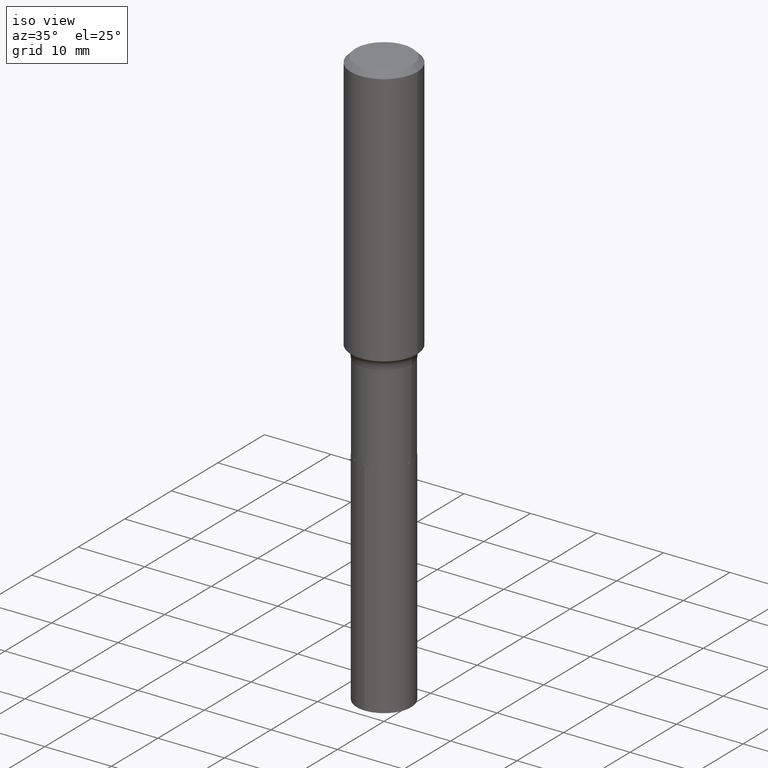
[diagram: clean part render]
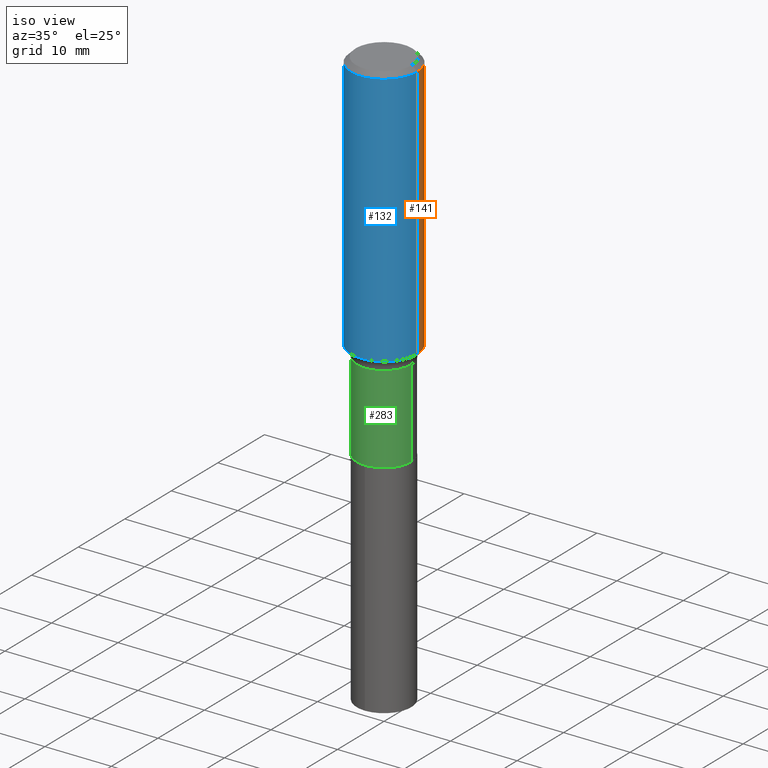
[diagram: same view with three faces highlighted in distinct colors, each labeled with its STEP entity id]
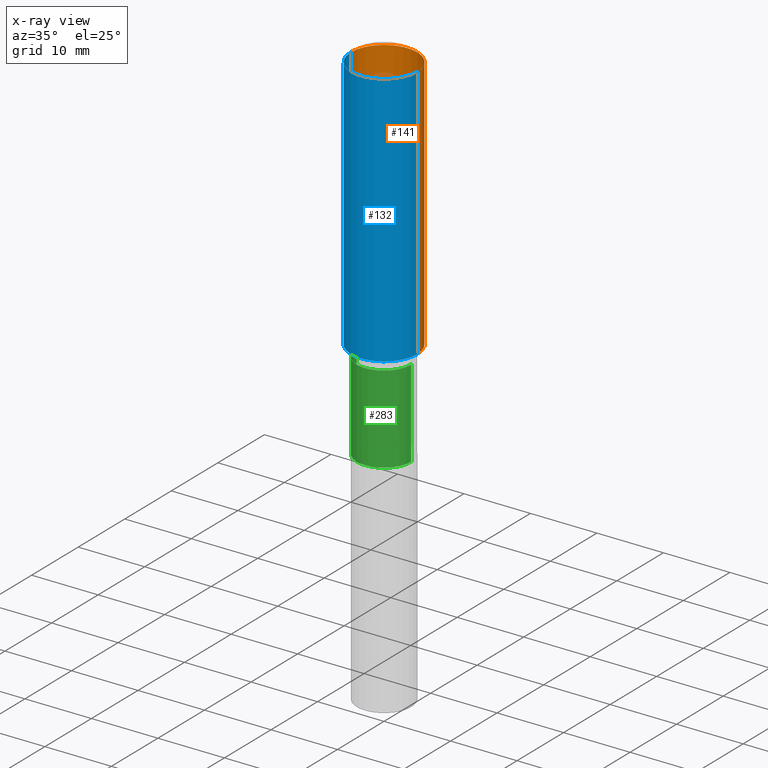
[diagram: x-ray of the same camera — body ghosted, the three highlighted faces saturated]
A machine part, iso view with three faces highlighted in distinct colors.
The next image is the same camera in x-ray (body ghosted, the three faces saturated) — at least one of them is partly hidden behind the body in this view.
Their STEP definitions:

[orange] entity #141 — the highlighted cylindrical surface (partial cylindrical patch) has radius 5 mm, axis along (-0, 0, 1).
#21 = CARTESIAN_POINT ( 'NONE',  ( 7.220858017463212113E-31, -1.030947152326916979E-16, -0.02952750000000020289 ) ) ;
#28 = DIRECTION ( 'NONE',  ( -2.445468806185136597E-29, 3.491481338843145583E-15, 1.000000000000000000 ) ) ;
#32 = CARTESIAN_POINT ( 'NONE',  ( 0.1968500000000000527, -1.477690918335233688E-15, -0.02952750000000020289 ) ) ;
#40 = LINE ( 'NONE', #111, #104 ) ;
#44 = EDGE_CURVE ( 'NONE', #207, #424, #474, .T. ) ;
#63 = CARTESIAN_POINT ( 'NONE',  ( -0.1968500000000001082, 1.398703375343757985E-15, -9.682923725166787881E-30 ) ) ;
#65 = CIRCLE ( 'NONE', #380, 0.1968500000000000527 ) ;
#79 = ORIENTED_EDGE ( 'NONE', *, *, #457, .F. ) ;
#85 = CARTESIAN_POINT ( 'NONE',  ( -0.1968500000000000527, -1.340809783523211195E-15, -0.02952750000000020289 ) ) ;
#87 = FACE_OUTER_BOUND ( 'NONE', #314, .T. ) ;
#104 = VECTOR ( 'NONE', #195, 39.37007874015748143 ) ;
#105 = DIRECTION ( 'NONE',  ( -2.445468806185136597E-29, 3.491481338843145583E-15, 1.000000000000000000 ) ) ;
#111 = CARTESIAN_POINT ( 'NONE',  ( 0.1968500000000001082, -1.374596203102542397E-15, 9.598753983154305062E-30 ) ) ;
#141 = ADVANCED_FACE ( 'NONE', ( #87 ), #239, .T. ) ;
#145 = VERTEX_POINT ( 'NONE', #85 ) ;
#195 = DIRECTION ( 'NONE',  ( -2.445468806185136877E-29, 3.491481338843145188E-15, 1.000000000000000000 ) ) ;
#196 = ORIENTED_EDGE ( 'NONE', *, *, #44, .T. ) ;
#205 = DIRECTION ( 'NONE',  ( 1.000000000000000000, -6.982962677686266711E-15, 4.876176775795935793E-29 ) ) ;
#206 = ORIENTED_EDGE ( 'NONE', *, *, #229, .F. ) ;
#207 = VERTEX_POINT ( 'NONE', #322 ) ;
#215 = DIRECTION ( 'NONE',  ( -2.445468806185136877E-29, 3.491481338843145188E-15, 1.000000000000000000 ) ) ;
#218 = DIRECTION ( 'NONE',  ( 1.000000000000000000, -6.982962677686266711E-15, 0.000000000000000000 ) ) ;
#229 = EDGE_CURVE ( 'NONE', #301, #145, #65, .T. ) ;
#239 = CYLINDRICAL_SURFACE ( 'NONE', #420, 0.1968500000000001082 ) ;
#256 = AXIS2_PLACEMENT_3D ( 'NONE', #269, #105, #258 ) ;
#258 = DIRECTION ( 'NONE',  ( 1.000000000000000000, -6.982962677686265922E-15, 0.000000000000000000 ) ) ;
#260 = CARTESIAN_POINT ( 'NONE',  ( -0.1968500000000001915, -3.977228227157489281E-15, -1.539728006761304391 ) ) ;
#269 = CARTESIAN_POINT ( 'NONE',  ( 3.765356810544387241E-29, -5.375931602501247069E-15, -1.539728006761304391 ) ) ;
#288 = EDGE_CURVE ( 'NONE', #424, #145, #397, .T. ) ;
#301 = VERTEX_POINT ( 'NONE', #32 ) ;
#314 = EDGE_LOOP ( 'NONE', ( #196, #323, #206, #79 ) ) ;
#322 = CARTESIAN_POINT ( 'NONE',  ( 0.1968500000000001915, -6.750527805603790255E-15, -1.539728006761304391 ) ) ;
#323 = ORIENTED_EDGE ( 'NONE', *, *, #288, .T. ) ;
#380 = AXIS2_PLACEMENT_3D ( 'NONE', #21, #28, #218 ) ;
#387 = DIRECTION ( 'NONE',  ( -2.445468806185136597E-29, 3.491481338843145583E-15, 1.000000000000000000 ) ) ;
#388 = VECTOR ( 'NONE', #215, 39.37007874015748143 ) ;
#391 = CARTESIAN_POINT ( 'NONE',  ( 0.000000000000000000, 0.000000000000000000, 0.000000000000000000 ) ) ;
#397 = LINE ( 'NONE', #63, #388 ) ;
#420 = AXIS2_PLACEMENT_3D ( 'NONE', #391, #387, #205 ) ;
#424 = VERTEX_POINT ( 'NONE', #260 ) ;
#457 = EDGE_CURVE ( 'NONE', #207, #301, #40, .T. ) ;
#474 = CIRCLE ( 'NONE', #256, 0.1968500000000002192 ) ;

[blue] entity #132 — the highlighted cylindrical surface (partial cylindrical patch) has radius 5 mm, axis along (-0, 0, 1).
#14 = DIRECTION ( 'NONE',  ( -2.445468806185136597E-29, 3.491481338843145583E-15, 1.000000000000000000 ) ) ;
#32 = CARTESIAN_POINT ( 'NONE',  ( 0.1968500000000000527, -1.477690918335233688E-15, -0.02952750000000020289 ) ) ;
#35 = CARTESIAN_POINT ( 'NONE',  ( 7.220858017463212113E-31, -1.030947152326916979E-16, -0.02952750000000020289 ) ) ;
#40 = LINE ( 'NONE', #111, #104 ) ;
#42 = AXIS2_PLACEMENT_3D ( 'NONE', #384, #14, #166 ) ;
#62 = EDGE_CURVE ( 'NONE', #424, #207, #291, .T. ) ;
#63 = CARTESIAN_POINT ( 'NONE',  ( -0.1968500000000001082, 1.398703375343757985E-15, -9.682923725166787881E-30 ) ) ;
#84 = CIRCLE ( 'NONE', #161, 0.1968500000000000527 ) ;
#85 = CARTESIAN_POINT ( 'NONE',  ( -0.1968500000000000527, -1.340809783523211195E-15, -0.02952750000000020289 ) ) ;
#104 = VECTOR ( 'NONE', #195, 39.37007874015748143 ) ;
#111 = CARTESIAN_POINT ( 'NONE',  ( 0.1968500000000001082, -1.374596203102542397E-15, 9.598753983154305062E-30 ) ) ;
#130 = ORIENTED_EDGE ( 'NONE', *, *, #403, .F. ) ;
#132 = ADVANCED_FACE ( 'NONE', ( #319 ), #279, .T. ) ;
#134 = ORIENTED_EDGE ( 'NONE', *, *, #62, .T. ) ;
#143 = EDGE_LOOP ( 'NONE', ( #167, #134, #432, #130 ) ) ;
#145 = VERTEX_POINT ( 'NONE', #85 ) ;
#161 = AXIS2_PLACEMENT_3D ( 'NONE', #35, #296, #230 ) ;
#166 = DIRECTION ( 'NONE',  ( 1.000000000000000000, -6.982962677686265922E-15, 0.000000000000000000 ) ) ;
#167 = ORIENTED_EDGE ( 'NONE', *, *, #288, .F. ) ;
#195 = DIRECTION ( 'NONE',  ( -2.445468806185136877E-29, 3.491481338843145188E-15, 1.000000000000000000 ) ) ;
#207 = VERTEX_POINT ( 'NONE', #322 ) ;
#215 = DIRECTION ( 'NONE',  ( -2.445468806185136877E-29, 3.491481338843145188E-15, 1.000000000000000000 ) ) ;
#230 = DIRECTION ( 'NONE',  ( 1.000000000000000000, -6.982962677686266711E-15, 0.000000000000000000 ) ) ;
#260 = CARTESIAN_POINT ( 'NONE',  ( -0.1968500000000001915, -3.977228227157489281E-15, -1.539728006761304391 ) ) ;
#279 = CYLINDRICAL_SURFACE ( 'NONE', #359, 0.1968500000000001082 ) ;
#281 = DIRECTION ( 'NONE',  ( -2.445468806185136597E-29, 3.491481338843145583E-15, 1.000000000000000000 ) ) ;
#288 = EDGE_CURVE ( 'NONE', #424, #145, #397, .T. ) ;
#291 = CIRCLE ( 'NONE', #42, 0.1968500000000002192 ) ;
#296 = DIRECTION ( 'NONE',  ( -2.445468806185136597E-29, 3.491481338843145583E-15, 1.000000000000000000 ) ) ;
#301 = VERTEX_POINT ( 'NONE', #32 ) ;
#319 = FACE_OUTER_BOUND ( 'NONE', #143, .T. ) ;
#322 = CARTESIAN_POINT ( 'NONE',  ( 0.1968500000000001915, -6.750527805603790255E-15, -1.539728006761304391 ) ) ;
#359 = AXIS2_PLACEMENT_3D ( 'NONE', #418, #281, #423 ) ;
#384 = CARTESIAN_POINT ( 'NONE',  ( 3.765356810544387241E-29, -5.375931602501247069E-15, -1.539728006761304391 ) ) ;
#388 = VECTOR ( 'NONE', #215, 39.37007874015748143 ) ;
#397 = LINE ( 'NONE', #63, #388 ) ;
#403 = EDGE_CURVE ( 'NONE', #145, #301, #84, .T. ) ;
#418 = CARTESIAN_POINT ( 'NONE',  ( 0.000000000000000000, 0.000000000000000000, 0.000000000000000000 ) ) ;
#423 = DIRECTION ( 'NONE',  ( 1.000000000000000000, -6.982962677686266711E-15, 4.876176775795935793E-29 ) ) ;
#424 = VERTEX_POINT ( 'NONE', #260 ) ;
#432 = ORIENTED_EDGE ( 'NONE', *, *, #457, .T. ) ;
#457 = EDGE_CURVE ( 'NONE', #207, #301, #40, .T. ) ;

[green] entity #283 — the highlighted cylindrical surface (edge-blend (fillet) strip) has radius 4.0996 mm, axis along (-0, 0, 1).
#1 = EDGE_CURVE ( 'NONE', #347, #216, #401, .T. ) ;
#24 = ORIENTED_EDGE ( 'NONE', *, *, #481, .T. ) ;
#29 = AXIS2_PLACEMENT_3D ( 'NONE', #464, #46, #129 ) ;
#46 = DIRECTION ( 'NONE',  ( -2.445468806185136597E-29, 3.491481338843145583E-15, 1.000000000000000000 ) ) ;
#53 = AXIS2_PLACEMENT_3D ( 'NONE', #286, #446, #444 ) ;
#60 = CYLINDRICAL_SURFACE ( 'NONE', #475, 0.1613999999999999602 ) ;
#69 = VECTOR ( 'NONE', #217, 39.37007874015748143 ) ;
#80 = EDGE_CURVE ( 'NONE', #347, #248, #264, .T. ) ;
#129 = DIRECTION ( 'NONE',  ( 1.000000000000000000, -6.982962677686265133E-15, 0.000000000000000000 ) ) ;
#157 = CARTESIAN_POINT ( 'NONE',  ( 0.1613999999999999602, -1.127050176178562936E-15, 7.870149316134637915E-30 ) ) ;
#208 = VECTOR ( 'NONE', #452, 39.37007874015748143 ) ;
#212 = CARTESIAN_POINT ( 'NONE',  ( -0.1613999999999999602, 1.146815975516801417E-15, -7.939161235671416085E-30 ) ) ;
#216 = VERTEX_POINT ( 'NONE', #404 ) ;
#217 = DIRECTION ( 'NONE',  ( -2.445468806185136877E-29, 3.491481338843145188E-15, 1.000000000000000000 ) ) ;
#245 = CARTESIAN_POINT ( 'NONE',  ( 0.000000000000000000, 0.000000000000000000, 0.000000000000000000 ) ) ;
#248 = VERTEX_POINT ( 'NONE', #486 ) ;
#257 = CIRCLE ( 'NONE', #53, 0.1613999999999999047 ) ;
#264 = CIRCLE ( 'NONE', #29, 0.1614000000000000157 ) ;
#278 = ORIENTED_EDGE ( 'NONE', *, *, #316, .F. ) ;
#283 = ADVANCED_FACE ( 'NONE', ( #331 ), #60, .T. ) ;
#286 = CARTESIAN_POINT ( 'NONE',  ( 3.925221980807762664E-29, -5.604176696977132426E-15, -1.605099999999999749 ) ) ;
#293 = DIRECTION ( 'NONE',  ( -2.445468806185136597E-29, 3.491481338843145583E-15, 1.000000000000000000 ) ) ;
#316 = EDGE_CURVE ( 'NONE', #216, #399, #257, .T. ) ;
#327 = ORIENTED_EDGE ( 'NONE', *, *, #80, .T. ) ;
#331 = FACE_OUTER_BOUND ( 'NONE', #451, .T. ) ;
#339 = CARTESIAN_POINT ( 'NONE',  ( 0.1613999999999999047, -6.731226873155694573E-15, -1.605099999999999749 ) ) ;
#347 = VERTEX_POINT ( 'NONE', #483 ) ;
#369 = ORIENTED_EDGE ( 'NONE', *, *, #1, .F. ) ;
#399 = VERTEX_POINT ( 'NONE', #339 ) ;
#401 = LINE ( 'NONE', #212, #69 ) ;
#404 = CARTESIAN_POINT ( 'NONE',  ( -0.1613999999999999047, -5.365669591760375012E-15, -1.605099999999999749 ) ) ;
#439 = DIRECTION ( 'NONE',  ( 1.000000000000000000, -6.982962677686265133E-15, 4.876176775795935232E-29 ) ) ;
#444 = DIRECTION ( 'NONE',  ( 1.000000000000000000, -6.982962677686264344E-15, 0.000000000000000000 ) ) ;
#446 = DIRECTION ( 'NONE',  ( -2.445468806185136597E-29, 3.491481338843145583E-15, 1.000000000000000000 ) ) ;
#451 = EDGE_LOOP ( 'NONE', ( #369, #327, #24, #278 ) ) ;
#452 = DIRECTION ( 'NONE',  ( -2.445468806185136877E-29, 3.491481338843145188E-15, 1.000000000000000000 ) ) ;
#464 = CARTESIAN_POINT ( 'NONE',  ( 5.197599400665889285E-29, -7.420794437577220826E-15, -2.125399999999999956 ) ) ;
#475 = AXIS2_PLACEMENT_3D ( 'NONE', #245, #293, #439 ) ;
#481 = EDGE_CURVE ( 'NONE', #248, #399, #490, .T. ) ;
#483 = CARTESIAN_POINT ( 'NONE',  ( -0.1614000000000000157, -5.365669591760374223E-15, -2.125399999999999956 ) ) ;
#486 = CARTESIAN_POINT ( 'NONE',  ( 0.1614000000000000157, -8.547844613755784551E-15, -2.125399999999999956 ) ) ;
#490 = LINE ( 'NONE', #157, #208 ) ;